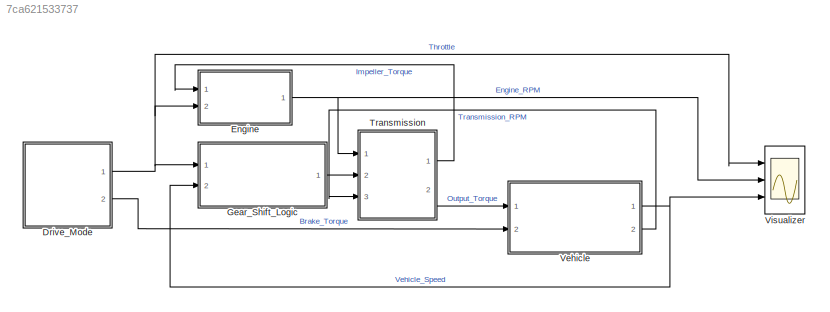
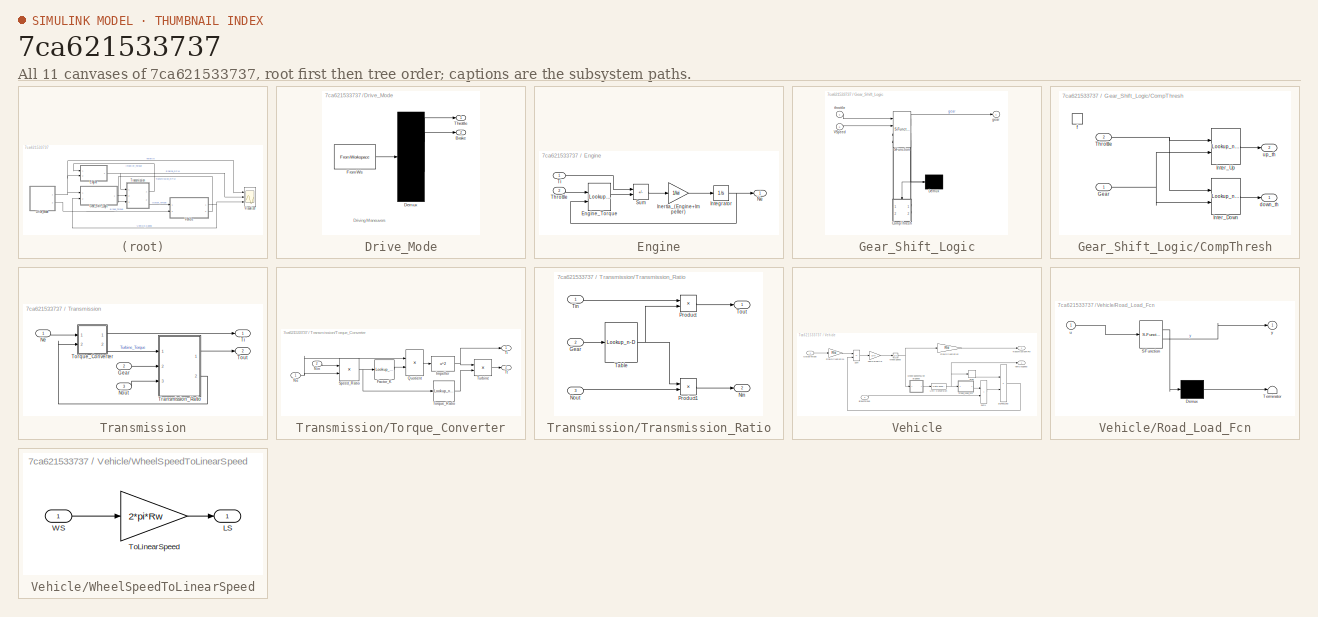
[diagram: thumbnail index - all 11 canvases of the model, root first then tree order]
MODEL slx_7ca621533737
KIND model
CONFIG AbsTol = auto
CONFIG EnableMultiTasking = off
CONFIG FixedStep = 0.01
CONFIG MaxStep = 0.1
CONFIG MinStep = auto
CONFIG RelTol = 1e-3
CONFIG SampleTimeConstraint = Unconstrained
CONFIG Solver = ode5
CONFIG SolverName = ode5
CONFIG StartTime = 0.0
CONFIG StopTime = 30.0
BLOCK [SubSystem] Drive_Mode
  ClipboardFcn = sigbuilder_block('clipboard');
  CloseFcn = sigbuilder_block('close');
  ContinueFcn = sigbuilder_block('continue')
  CopyFcn = sigbuilder_block('copy');
  DeleteFcn = sigbuilder_block('delete');
  LoadFcn = sigbuilder_block('load');
  MaskHideContents = on
  ModelCloseFcn = sigbuilder_block('modelClose');
  NameChangeFcn = sigbuilder_block('namechange');
  OpenFcn = sigbuilder_block('open',[6 0 1012.5 477.75 ]);
  PauseFcn = sigbuilder_block('pause')
  Ports = [0, 2]
  PreSaveFcn = sigbuilder_block('preSave');
  RequestExecContextInheritance = off
  StartFcn = sigbuilder_block('start');
  StopFcn = sigbuilder_block('stop');
  Tag = STV Subsys
BLOCK [Outport] Drive_Mode/Brake
  Port = 2
  Tag = STV Outport
  VectorParamsAs1DForOutWhenUnconnected = off
BLOCK [Demux] Drive_Mode/Demux
  DisplayOption = none
  Outputs = 2
  Ports = [1, 2]
  Tag = STV Demux
BLOCK [FromWorkspace] Drive_Mode/FromWs
  Tag = STV FromWs
  VariableName = tuvar
  ZeroCross = off
BLOCK [Outport] Drive_Mode/Throttle
  Tag = STV Outport
  VectorParamsAs1DForOutWhenUnconnected = off
BLOCK [SubSystem] Engine
  Ports = [2, 1]
  RequestExecContextInheritance = off
BLOCK [Lookup_n-D] Engine/Engine_Torque
  BreakpointsForDimension1 = TH_VEC
  BreakpointsForDimension2 = NE_VEC
  Ports = [2, 1]
  Table = EMAP
BLOCK [Gain] Engine/Inertia_(Engine+Impeller)
  Gain = 1/Iei
  OutDataTypeStr = Inherit: Same as input
  ParamDataTypeStr = Inherit: Same as input
  SaturateOnIntegerOverflow = on
BLOCK [Integrator] Engine/Integrator
  InitialCondition = 1000
  LimitOutput = on
  LowerSaturationLimit = 600
  Ports = [1, 1]
  UpperSaturationLimit = 6000
  ZeroCross = off
BLOCK [Outport] Engine/Ne
  Unit = rpm
  VectorParamsAs1DForOutWhenUnconnected = off
BLOCK [Sum] Engine/Sum
  IconShape = rectangular
  InputSameDT = on
  Inputs = -+
  OutDataTypeStr = Inherit: Same as first input
  Ports = [2, 1]
  SaturateOnIntegerOverflow = on
BLOCK [Inport] Engine/Throttle
  Port = 2
  Unit = %
BLOCK [Inport] Engine/Ti
  Unit = ft*lbf@torque
BLOCK [SubSystem] Gear_Shift_Logic
  ErrorFcn = Stateflow.Translate.translate
  PermitHierarchicalResolution = ExplicitOnly
  Ports = [2, 1]
  RequestExecContextInheritance = off
  SFBlockType = Chart
  TreatAsAtomicUnit = on
BLOCK [Demux] Gear_Shift_Logic/ Demux 
  Outputs = 1
  Ports = [1, 1]
BLOCK [S-Function] Gear_Shift_Logic/ SFunction 
  EnableBusSupport = on
  FunctionName = sf_sfun
  Parameters = TWait
  PortCounts = [4 4]
  Ports = [4, 4]
  SFcnIsStateOwnerBlock = off
  SFunctionDeploymentMode = off
  Tag = Stateflow S-Function 1
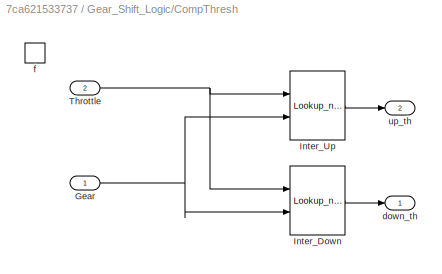
BLOCK [SubSystem] Gear_Shift_Logic/CompThresh
  Ports = [2, 2, 0, 1]
  PreDeleteFcn = Stateflow.SLINSF.SimulinkMan.removePreDeleteFcn
  RequestExecContextInheritance = off
  UndoDeleteFcn = Stateflow.SLINSF.SimulinkMan.restorePreDeleteFcn
BLOCK [Inport] Gear_Shift_Logic/CompThresh/Gear
BLOCK [Lookup_n-D] Gear_Shift_Logic/CompThresh/Inter_Down
  BreakpointsForDimension1 = DOWN_TH_BP
  BreakpointsForDimension2 = [1:4]
  InputSameDT = off
  LockScale = on
  OutDataTypeStr = double
  Ports = [2, 1]
  Table = DOWN_TABLE
BLOCK [Lookup_n-D] Gear_Shift_Logic/CompThresh/Inter_Up
  BreakpointsForDimension1 = UP_TH_BP
  BreakpointsForDimension2 = [1:4]
  InputSameDT = off
  LockScale = on
  OutDataTypeStr = double
  Ports = [2, 1]
  Table = UP_TABLE
BLOCK [Inport] Gear_Shift_Logic/CompThresh/Throttle
  Port = 2
BLOCK [Outport] Gear_Shift_Logic/CompThresh/down_th
  InitialOutput = 0
  VectorParamsAs1DForOutWhenUnconnected = off
BLOCK [TriggerPort] Gear_Shift_Logic/CompThresh/f
  CopyFcn = Stateflow.SLINSF.SimulinkMan.removeBlockPreDeleteFcn
  Ports = []
  PreDeleteFcn = Stateflow.SLINSF.SimulinkMan.unsafePredeleteFcn
  StatesWhenEnabling = held
  TriggerType = function-call
  VariantControl = (inherit)
BLOCK [Outport] Gear_Shift_Logic/CompThresh/up_th
  InitialOutput = 0
  Port = 2
  VectorParamsAs1DForOutWhenUnconnected = off
BLOCK [Inport] Gear_Shift_Logic/VSpeed
  Port = 2
BLOCK [Outport] Gear_Shift_Logic/gear
  VectorParamsAs1DForOutWhenUnconnected = off
BLOCK [Inport] Gear_Shift_Logic/throttle
BLOCK [SubSystem] Transmission
  Ports = [3, 2]
  RequestExecContextInheritance = off
BLOCK [Inport] Transmission/Gear
  Port = 2
  Unit = 1
BLOCK [Inport] Transmission/Ne
  Unit = rpm
BLOCK [Inport] Transmission/Nout
  Port = 3
  Unit = rpm
BLOCK [Outport] Transmission/Ti
  Unit = ft*lbf@torque
  VectorParamsAs1DForOutWhenUnconnected = off
BLOCK [SubSystem] Transmission/Torque_Converter
  Ports = [2, 2]
  RequestExecContextInheritance = off
  ShowPortLabels = none
BLOCK [Lookup_n-D] Transmission/Torque_Converter/Factor_K
  BreakpointsForDimension1 = speedratio
  NumberOfTableDimensions = 1
  Ports = [1, 1]
  SaturateOnIntegerOverflow = on
  Table = Kfactor
BLOCK [Fcn] Transmission/Torque_Converter/Impeller
  Expr = u^2
BLOCK [Inport] Transmission/Torque_Converter/Ne
BLOCK [Inport] Transmission/Torque_Converter/Nin
  Port = 2
BLOCK [Product] Transmission/Torque_Converter/Quotient
  InputSameDT = on
  Inputs = */
  OutDataTypeStr = Inherit: Same as first input
  Ports = [2, 1]
  SaturateOnIntegerOverflow = on
BLOCK [Product] Transmission/Torque_Converter/Speed_Ratio
  InputSameDT = on
  Inputs = */
  OutDataTypeStr = Inherit: Same as first input
  Ports = [2, 1]
  SaturateOnIntegerOverflow = on
BLOCK [Outport] Transmission/Torque_Converter/Ti
  VectorParamsAs1DForOutWhenUnconnected = off
BLOCK [Lookup_n-D] Transmission/Torque_Converter/Torque_Ratio
  BreakpointsForDimension1 = speedratio
  NumberOfTableDimensions = 1
  Ports = [1, 1]
  SaturateOnIntegerOverflow = on
  Table = Torkratio
BLOCK [Outport] Transmission/Torque_Converter/Tt
  Port = 2
  VectorParamsAs1DForOutWhenUnconnected = off
BLOCK [Product] Transmission/Torque_Converter/Turbine
  InputSameDT = on
  OutDataTypeStr = Inherit: Same as first input
  Ports = [2, 1]
  SaturateOnIntegerOverflow = on
BLOCK [Outport] Transmission/Tout
  Port = 2
  Unit = ft*lbf@torque
  VectorParamsAs1DForOutWhenUnconnected = off
BLOCK [SubSystem] Transmission/Transmission_Ratio
  Ports = [3, 2]
  RequestExecContextInheritance = off
BLOCK [Inport] Transmission/Transmission_Ratio/Gear
  Port = 2
  Unit = 1
BLOCK [Outport] Transmission/Transmission_Ratio/Nin
  Port = 2
  Unit = rpm
  VectorParamsAs1DForOutWhenUnconnected = off
BLOCK [Inport] Transmission/Transmission_Ratio/Nout
  Port = 3
  Unit = rpm
BLOCK [Product] Transmission/Transmission_Ratio/Product
  InputSameDT = on
  OutDataTypeStr = Inherit: Same as first input
  Ports = [2, 1]
  SaturateOnIntegerOverflow = on
BLOCK [Product] Transmission/Transmission_Ratio/Product1
  InputSameDT = on
  OutDataTypeStr = Inherit: Same as first input
  Ports = [2, 1]
  SaturateOnIntegerOverflow = on
BLOCK [Lookup_n-D] Transmission/Transmission_Ratio/Table
  BreakpointsForDimension1 = [1 2 3 4]
  ExtrapMethod = Clip
  LockScale = on
  NumberOfTableDimensions = 1
  OutDataTypeStr = double
  Ports = [1, 1]
  SaturateOnIntegerOverflow = on
  Table = [2.393 1.450 1.000 0.677]
BLOCK [Inport] Transmission/Transmission_Ratio/Tin
  Unit = ft*lbf@torque
BLOCK [Outport] Transmission/Transmission_Ratio/Tout
  Unit = ft*lbf@torque
  VectorParamsAs1DForOutWhenUnconnected = off
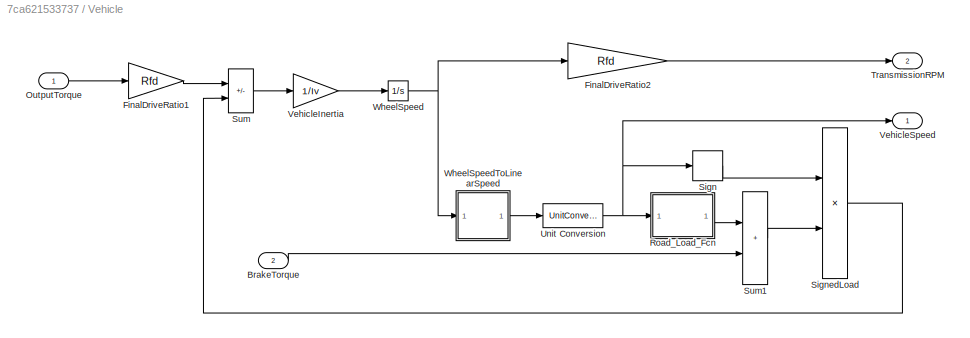
BLOCK [SubSystem] Vehicle
  Ports = [2, 2]
  RequestExecContextInheritance = off
  ShowPortLabels = none
BLOCK [Inport] Vehicle/BrakeTorque
  Port = 2
  Unit = ft*lbf@torque
BLOCK [Gain] Vehicle/FinalDriveRatio1
  Gain = Rfd
  OutDataTypeStr = Inherit: Same as input
  ParamDataTypeStr = Inherit: Same as input
  SaturateOnIntegerOverflow = on
BLOCK [Gain] Vehicle/FinalDriveRatio2
  Gain = Rfd
  OutDataTypeStr = Inherit: Same as input
  ParamDataTypeStr = Inherit: Same as input
  SaturateOnIntegerOverflow = on
BLOCK [Inport] Vehicle/OutputTorque
  Unit = ft*lbf@torque
BLOCK [SubSystem] Vehicle/Road_Load_Fcn
  ErrorFcn = Stateflow.Translate.translate
  PermitHierarchicalResolution = ExplicitOnly
  Ports = [1, 1]
  RequestExecContextInheritance = off
  SFBlockType = MATLAB Function
  TreatAsAtomicUnit = on
BLOCK [Demux] Vehicle/Road_Load_Fcn/ Demux 
  Outputs = 1
  Ports = [1, 1]
BLOCK [S-Function] Vehicle/Road_Load_Fcn/ SFunction 
  EnableBusSupport = on
  FunctionName = sf_sfun
  PortCounts = [1 2]
  Ports = [1, 2]
  SFcnIsStateOwnerBlock = off
  SFunctionDeploymentMode = off
  Tag = Stateflow S-Function 2
BLOCK [Terminator] Vehicle/Road_Load_Fcn/ Terminator 
BLOCK [Inport] Vehicle/Road_Load_Fcn/u
BLOCK [Outport] Vehicle/Road_Load_Fcn/y
BLOCK [Signum] Vehicle/Sign
BLOCK [Product] Vehicle/SignedLoad
  InputSameDT = on
  OutDataTypeStr = Inherit: Same as first input
  Ports = [2, 1]
  SaturateOnIntegerOverflow = on
BLOCK [Sum] Vehicle/Sum
  IconShape = rectangular
  InputSameDT = on
  Inputs = +-
  OutDataTypeStr = Inherit: Same as first input
  Ports = [2, 1]
  SaturateOnIntegerOverflow = on
BLOCK [Sum] Vehicle/Sum1
  IconShape = rectangular
  InputSameDT = on
  OutDataTypeStr = Inherit: Same as first input
  Ports = [2, 1]
  SaturateOnIntegerOverflow = on
BLOCK [Outport] Vehicle/TransmissionRPM
  Port = 2
  Unit = rpm
  VectorParamsAs1DForOutWhenUnconnected = off
BLOCK [UnitConversion] Vehicle/Unit Conversion
BLOCK [Gain] Vehicle/VehicleInertia
  Gain = 1/Iv
  OutDataTypeStr = Inherit: Same as input
  ParamDataTypeStr = Inherit: Same as input
  SaturateOnIntegerOverflow = on
BLOCK [Outport] Vehicle/VehicleSpeed
  Unit = mph
  VectorParamsAs1DForOutWhenUnconnected = off
BLOCK [Integrator] Vehicle/WheelSpeed
  InitialCondition = N20/Rfd
  Ports = [1, 1]
  ZeroCross = off
BLOCK [SubSystem] Vehicle/WheelSpeedToLinearSpeed
  Ports = [1, 1]
  RequestExecContextInheritance = off
BLOCK [Outport] Vehicle/WheelSpeedToLinearSpeed/LS
  Unit = ft/min
  VectorParamsAs1DForOutWhenUnconnected = off
BLOCK [Gain] Vehicle/WheelSpeedToLinearSpeed/ToLinearSpeed
  Gain = 2*pi*Rw
  OutDataTypeStr = Inherit: Same as input
  ParamDataTypeStr = Inherit: Same as input
  SaturateOnIntegerOverflow = on
BLOCK [Inport] Vehicle/WheelSpeedToLinearSpeed/WS
  Unit = rpm
BLOCK [Scope] Visualizer
  Floating = off
  NumInputPorts = 3
  Ports = [3]
  ScopeSpecificationString = Simulink.scopes.TimeScopeBlockCfg('CurrentConfiguration', extmgr.ConfigurationSet(extmgr.Configuration('Core','General UI',true),extmgr.Configuration('Core','Source UI',true),extmgr.Configuration('Sources','WiredSimulink',true),extmgr.Configuration('Visuals','Time Domain',true,'SerializedDisplays',{struct('MinYLimReal','32.5','MaxYLimReal','107.5','YLabelReal','','MinYLimMag','32.5','MaxYLimMag','...<+2713ch>
ANNOTATION Drive_Mode: Driving Maneuvers
LINE Drive_Mode/Demux:1 -> Drive_Mode/Throttle:1
LINE Drive_Mode/Demux:2 -> Drive_Mode/Brake:1
LINE Drive_Mode/FromWs:1 -> Drive_Mode/Demux:1
NET Drive_Mode:1 -> Engine:2, Gear_Shift_Logic:1, Visualizer:1
LINE Drive_Mode:2 -> Vehicle:2
LINE Engine/Engine_Torque:1 -> Engine/Sum:2
LINE Engine/Inertia_(Engine+Impeller):1 -> Engine/Integrator:1
NET Engine/Integrator:1 -> Engine/Engine_Torque:2, Engine/Ne:1
LINE Engine/Sum:1 -> Engine/Inertia_(Engine+Impeller):1
LINE Engine/Throttle:1 -> Engine/Engine_Torque:1
LINE Engine/Ti:1 -> Engine/Sum:1
NET Engine:1 -> Transmission:1, Visualizer:2
LINE Gear_Shift_Logic:1 -> Transmission:2
LINE Transmission/Gear:1 -> Transmission/Transmission_Ratio:2
LINE Transmission/Ne:1 -> Transmission/Torque_Converter:1
LINE Transmission/Nout:1 -> Transmission/Transmission_Ratio:3
LINE Transmission/Torque_Converter/Factor_K:1 -> Transmission/Torque_Converter/Quotient:2
NET Transmission/Torque_Converter/Impeller:1 -> Transmission/Torque_Converter/Ti:1, Transmission/Torque_Converter/Turbine:1
NET Transmission/Torque_Converter/Ne:1 -> Transmission/Torque_Converter/Quotient:1, Transmission/Torque_Converter/Speed_Ratio:2
LINE Transmission/Torque_Converter/Nin:1 -> Transmission/Torque_Converter/Speed_Ratio:1
LINE Transmission/Torque_Converter/Quotient:1 -> Transmission/Torque_Converter/Impeller:1
NET Transmission/Torque_Converter/Speed_Ratio:1 -> Transmission/Torque_Converter/Factor_K:1, Transmission/Torque_Converter/Torque_Ratio:1
LINE Transmission/Torque_Converter/Torque_Ratio:1 -> Transmission/Torque_Converter/Turbine:2
LINE Transmission/Torque_Converter/Turbine:1 -> Transmission/Torque_Converter/Tt:1
LINE Transmission/Torque_Converter:1 -> Transmission/Ti:1
LINE Transmission/Torque_Converter:2 -> Transmission/Transmission_Ratio:1
LINE Transmission/Transmission_Ratio/Gear:1 -> Transmission/Transmission_Ratio/Table:1
LINE Transmission/Transmission_Ratio/Nout:1 -> Transmission/Transmission_Ratio/Product1:2
LINE Transmission/Transmission_Ratio/Product1:1 -> Transmission/Transmission_Ratio/Nin:1
LINE Transmission/Transmission_Ratio/Product:1 -> Transmission/Transmission_Ratio/Tout:1
NET Transmission/Transmission_Ratio/Table:1 -> Transmission/Transmission_Ratio/Product1:1, Transmission/Transmission_Ratio/Product:2
LINE Transmission/Transmission_Ratio/Tin:1 -> Transmission/Transmission_Ratio/Product:1
LINE Transmission/Transmission_Ratio:1 -> Transmission/Tout:1
LINE Transmission/Transmission_Ratio:2 -> Transmission/Torque_Converter:2
LINE Transmission:1 -> Engine:1
LINE Transmission:2 -> Vehicle:1
LINE Vehicle/BrakeTorque:1 -> Vehicle/Sum1:2
LINE Vehicle/FinalDriveRatio1:1 -> Vehicle/Sum:1
LINE Vehicle/FinalDriveRatio2:1 -> Vehicle/TransmissionRPM:1
LINE Vehicle/OutputTorque:1 -> Vehicle/FinalDriveRatio1:1
LINE Vehicle/Road_Load_Fcn:1 -> Vehicle/Sum1:1
LINE Vehicle/Sign:1 -> Vehicle/SignedLoad:1
LINE Vehicle/SignedLoad:1 -> Vehicle/Sum:2
LINE Vehicle/Sum1:1 -> Vehicle/SignedLoad:2
LINE Vehicle/Sum:1 -> Vehicle/VehicleInertia:1
NET Vehicle/Unit Conversion:1 -> Vehicle/Road_Load_Fcn:1, Vehicle/Sign:1, Vehicle/VehicleSpeed:1
LINE Vehicle/VehicleInertia:1 -> Vehicle/WheelSpeed:1
NET Vehicle/WheelSpeed:1 -> Vehicle/FinalDriveRatio2:1, Vehicle/WheelSpeedToLinearSpeed:1
LINE Vehicle/WheelSpeedToLinearSpeed/ToLinearSpeed:1 -> Vehicle/WheelSpeedToLinearSpeed/LS:1
LINE Vehicle/WheelSpeedToLinearSpeed/WS:1 -> Vehicle/WheelSpeedToLinearSpeed/ToLinearSpeed:1
LINE Vehicle/WheelSpeedToLinearSpeed:1 -> Vehicle/Unit Conversion:1
NET Vehicle:1 -> Gear_Shift_Logic:2, Visualizer:3
LINE Vehicle:2 -> Transmission:3
note: NET lines group one-source signal fan-out (src -> all destinations, sorted); 1:1 wires keep LINE
CHART Gear_Shift_Logic states=10 transitions=14
  STATE_LABEL 'g_state'
  STATE_LABEL 'Gear_1\nentry:\ngear = 1;'
  STATE_LABEL 'Gear_2\nentry:\ngear = 2;'
  STATE_LABEL 'Gear_3\nentry:\ngear = 3;'
  STATE_LABEL 'Gear_4\nentry:\ngear = 4;'
  STATE_LABEL 'up'
  STATE_LABEL 'up'
  STATE_LABEL 'up'
  STATE_LABEL 'down'
  STATE_LABEL 'down'
  STATE_LABEL 'down'
  STATE_LABEL 'Gear_1\nentry:\ngear = 1;'
  STATE_LABEL 'Gear_2\nentry:\ngear = 2;'
  STATE_LABEL 'Gear_3\nentry:\ngear = 3;'
  STATE_LABEL 'Gear_4\nentry:\ngear = 4;'
  STATE_LABEL 'sel_state\nduring:\n[D_Th, U_Th] = CompThresh(gear,throttle);'
  STATE_LABEL 'steady_state'
  STATE_LABEL 'upshifting'
  STATE_LABEL 'downshifting'
  STATE_LABEL '[VSpeed > U_Th]'
  STATE_LABEL '[VSpeed < D_Th]'
  STATE_LABEL '[VSpeed > D_Th]'
  STATE_LABEL 'after(TWait,tick)\n[VSpeed <= D_Th]\n{g_state.down}'
  STATE_LABEL 'after(TWait,tick)\n[VSpeed >= U_Th]\n{g_state.up}'
  STATE_LABEL '[VSpeed < U_Th]'
  STATE_LABEL 'steady_state'
  STATE_LABEL 'upshifting'
  STATE_LABEL 'downshifting'
  STATE_LABEL '[down_th,up_th] = CompThresh(Gear,Throttle)'
CHART Vehicle/Road_Load_Fcn states=1 transitions=1
  STATE_LABEL 'eML_blk_kernel()'
  STATE_LABEL 'SCRIPT:\nfunction y = fcn(u)\ny = 40 + 0.02*u^2;'
CHART  states=0 transitions=0
CHART  states=0 transitions=0
